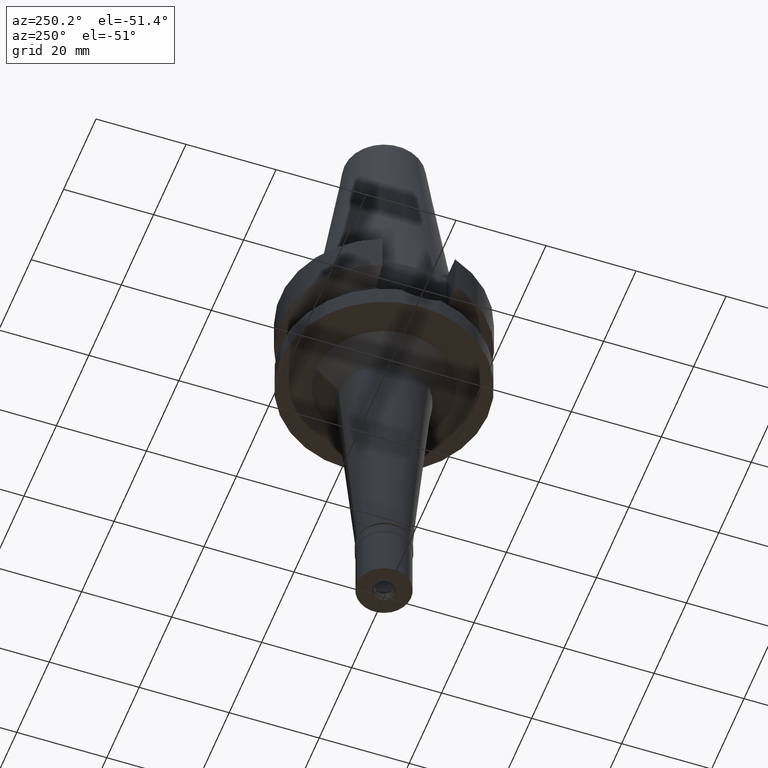
[diagram: clean part render]
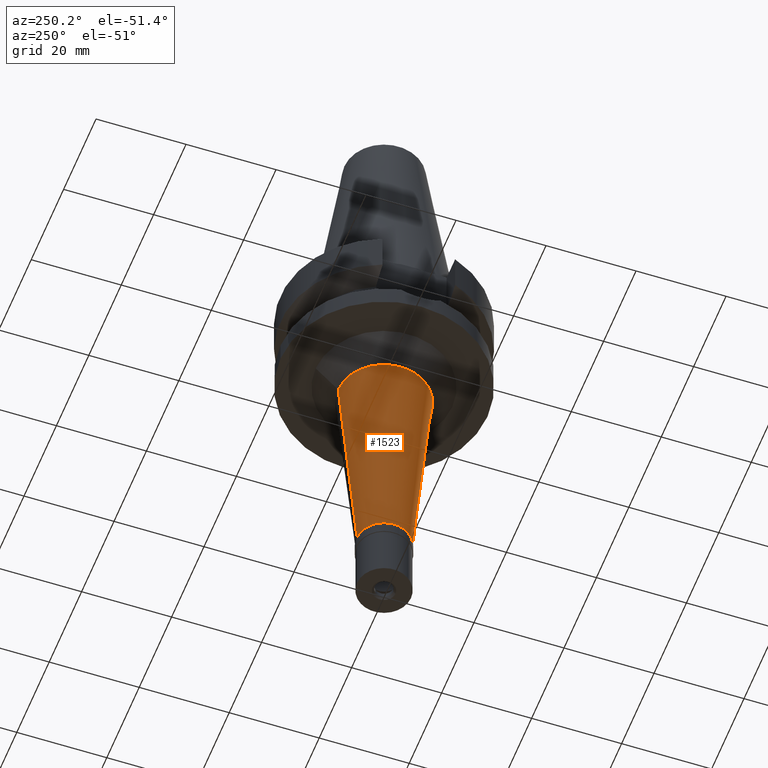
[diagram: same view with one face highlighted and labeled with its STEP entity id]
A machine part, auxiliary view. The second image highlights one B-rep face of the part: STEP entity #1523.
In plain terms, the highlighted conical surface has half-angle 5 deg.
Its self-contained STEP definition (entity closure, byte-faithful):
#7 = CARTESIAN_POINT ( 'NONE',  ( 0.0000000000000000000, -6.000000000000000000, -74.80000000000001137 ) ) ;
#20 = VECTOR ( 'NONE', #514, 1000.000000000000000 ) ;
#56 = VERTEX_POINT ( 'NONE', #2761 ) ;
#129 = DIRECTION ( 'NONE',  ( 0.0000000000000000000, 0.0000000000000000000, 1.000000000000000000 ) ) ;
#132 = DIRECTION ( 'NONE',  ( 0.0000000000000000000, 0.0000000000000000000, -1.000000000000000000 ) ) ;
#210 = LINE ( 'NONE', #1118, #1718 ) ;
#397 = DIRECTION ( 'NONE',  ( 0.0000000000000000000, 1.000000000000000000, 0.0000000000000000000 ) ) ;
#446 = EDGE_CURVE ( 'NONE', #1073, #56, #210, .T. ) ;
#514 = DIRECTION ( 'NONE',  ( 0.0000000000000000000, 0.08715574274767391716, -0.9961946980917442129 ) ) ;
#732 = ORIENTED_EDGE ( 'NONE', *, *, #446, .T. ) ;
#766 = VERTEX_POINT ( 'NONE', #7 ) ;
#896 = CIRCLE ( 'NONE', #2882, 6.000000000000000000 ) ;
#912 = DIRECTION ( 'NONE',  ( 0.0000000000000000000, -0.08715574274767391716, -0.9961946980917442129 ) ) ;
#952 = LINE ( 'NONE', #1857, #20 ) ;
#1073 = VERTEX_POINT ( 'NONE', #2461 ) ;
#1114 = ORIENTED_EDGE ( 'NONE', *, *, #2129, .T. ) ;
#1118 = CARTESIAN_POINT ( 'NONE',  ( 0.0000000000000000000, 10.18195811653999883, -27.00000000000000000 ) ) ;
#1119 = CIRCLE ( 'NONE', #2077, 10.18195811653999883 ) ;
#1161 = AXIS2_PLACEMENT_3D ( 'NONE', #1684, #1414, #1921 ) ;
#1385 = VERTEX_POINT ( 'NONE', #2754 ) ;
#1414 = DIRECTION ( 'NONE',  ( 0.0000000000000000000, 0.0000000000000000000, 1.000000000000000000 ) ) ;
#1482 = CARTESIAN_POINT ( 'NONE',  ( 0.0000000000000000000, 0.0000000000000000000, -74.80000000000001137 ) ) ;
#1486 = DIRECTION ( 'NONE',  ( 0.0000000000000000000, -1.000000000000000000, 0.0000000000000000000 ) ) ;
#1523 = ADVANCED_FACE ( 'NONE', ( #2137 ), #2368, .T. ) ;
#1684 = CARTESIAN_POINT ( 'NONE',  ( 0.0000000000000000000, 0.0000000000000000000, -50.89999999999999858 ) ) ;
#1707 = EDGE_LOOP ( 'NONE', ( #1114, #1754, #2074, #732 ) ) ;
#1718 = VECTOR ( 'NONE', #912, 1000.000000000000000 ) ;
#1754 = ORIENTED_EDGE ( 'NONE', *, *, #2706, .F. ) ;
#1857 = CARTESIAN_POINT ( 'NONE',  ( 0.0000000000000000000, -10.18195811653999883, -27.00000000000000000 ) ) ;
#1921 = DIRECTION ( 'NONE',  ( 0.0000000000000000000, 1.000000000000000000, 0.0000000000000000000 ) ) ;
#2074 = ORIENTED_EDGE ( 'NONE', *, *, #2563, .T. ) ;
#2077 = AXIS2_PLACEMENT_3D ( 'NONE', #2624, #132, #1486 ) ;
#2129 = EDGE_CURVE ( 'NONE', #56, #766, #896, .T. ) ;
#2137 = FACE_OUTER_BOUND ( 'NONE', #1707, .T. ) ;
#2368 = CONICAL_SURFACE ( 'NONE', #1161, 8.090979058269999413, 0.08726646259969973729 ) ;
#2461 = CARTESIAN_POINT ( 'NONE',  ( 0.0000000000000000000, 10.18195811653999883, -27.00000000000000000 ) ) ;
#2563 = EDGE_CURVE ( 'NONE', #1385, #1073, #1119, .T. ) ;
#2624 = CARTESIAN_POINT ( 'NONE',  ( 0.0000000000000000000, 0.0000000000000000000, -27.00000000000000000 ) ) ;
#2706 = EDGE_CURVE ( 'NONE', #1385, #766, #952, .T. ) ;
#2754 = CARTESIAN_POINT ( 'NONE',  ( 0.0000000000000000000, -10.18195811653999883, -27.00000000000000000 ) ) ;
#2761 = CARTESIAN_POINT ( 'NONE',  ( 0.0000000000000000000, 6.000000000000000000, -74.80000000000001137 ) ) ;
#2882 = AXIS2_PLACEMENT_3D ( 'NONE', #1482, #129, #397 ) ;